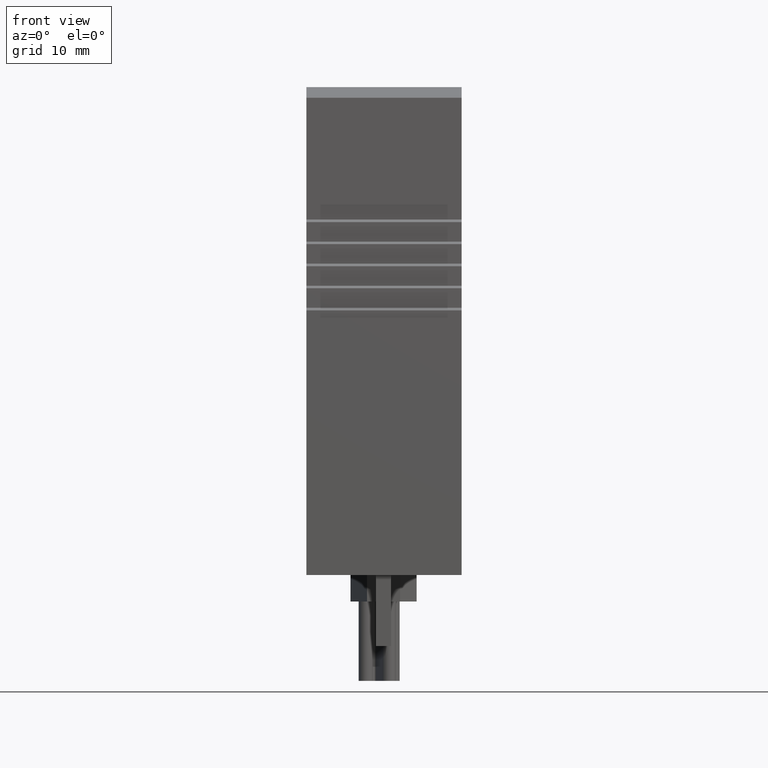
[diagram: clean part render]
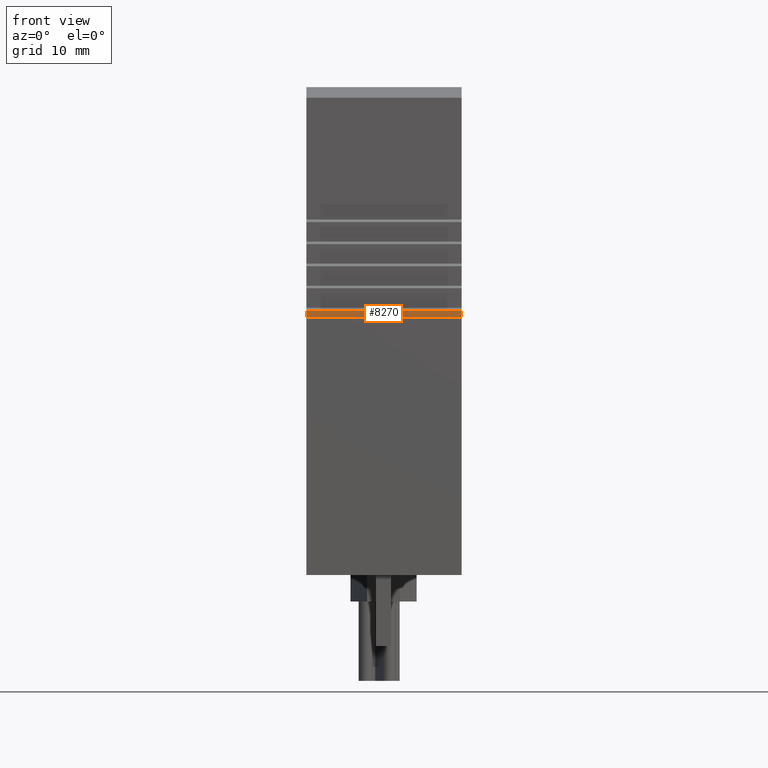
[diagram: same view with one face highlighted and labeled with its STEP entity id]
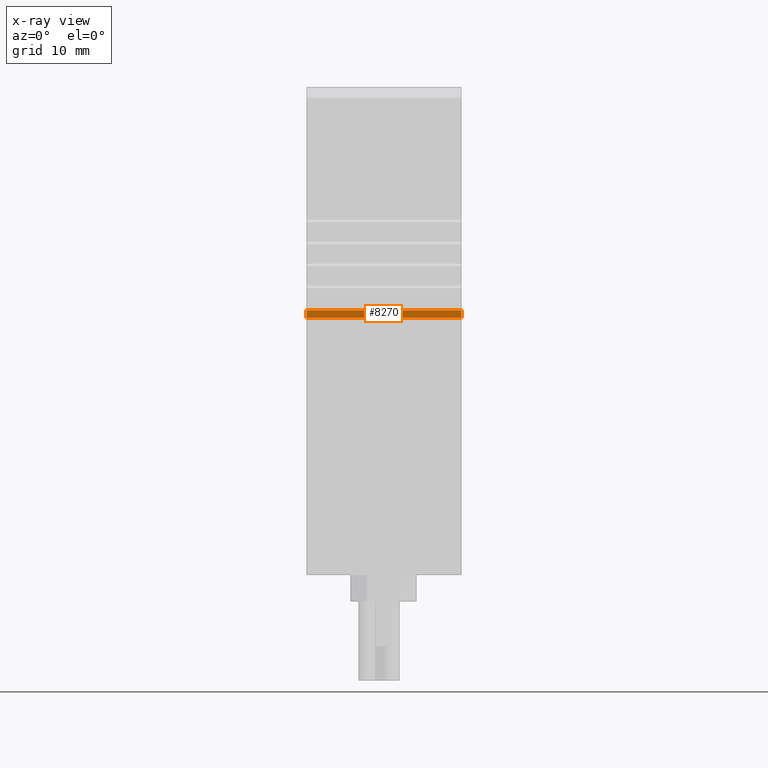
[diagram: x-ray of the same camera — body ghosted, the highlighted face saturated]
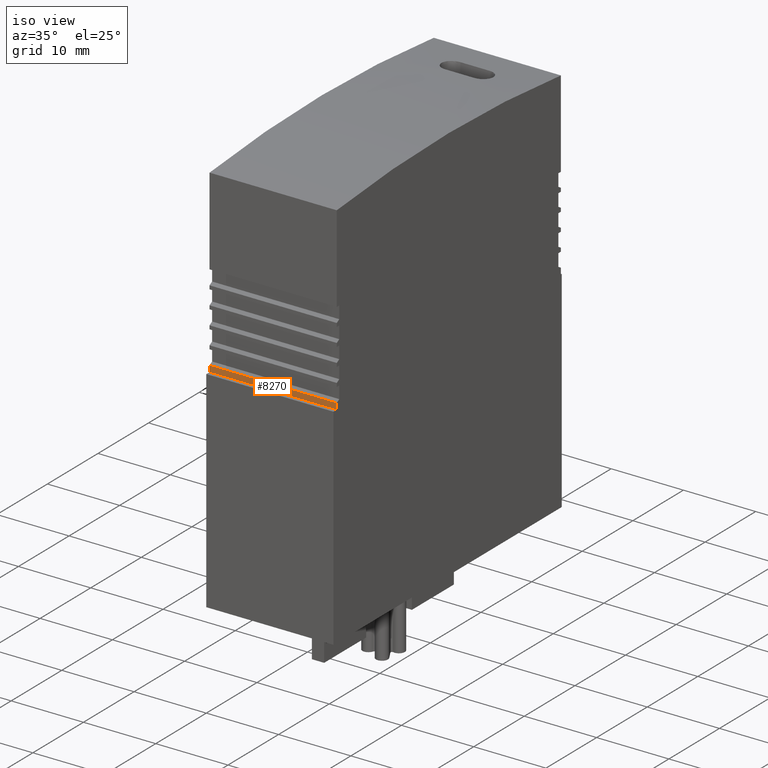
[diagram: same view with one face highlighted and labeled with its STEP entity id]
A machine part, front view. The second image highlights one B-rep face of the part: STEP entity #8270.
The next image is the same camera in x-ray: the body ghosted, the highlighted face saturated — about 0% of this face is hidden behind the body in this view.
A second angle (iso view) of the same face is appended — the face is thin or edge-on in the first view.
In plain terms, the highlighted planar face has unit normal (0, 1, -0).
Its self-contained STEP definition (entity closure, byte-faithful):
#3890=CARTESIAN_POINT('',(-21.6075274793369,53.8645893914119,
20.2498827057472));
#3900=VERTEX_POINT('',#3890);
#3930=CARTESIAN_POINT('',(-21.6075274793449,-20.149999999878,
20.2498827057463));
#3940=DIRECTION('',(-1.08637101161914E-13,-1.,-1.24373101147408E-14));
#3950=VECTOR('',#3940,1.);
#3960=LINE('',#3930,#3950);
#3970=CARTESIAN_POINT('',(-21.6075274793368,54.7149882265621,
20.2498827057472));
#3980=VERTEX_POINT('',#3970);
#3990=EDGE_CURVE('',#3980,#3900,#3960,.T.);
#7770=CARTESIAN_POINT('',(-21.6075274793369,53.8645893914121,
2.64988270574722));
#7780=VERTEX_POINT('',#7770);
#7810=CARTESIAN_POINT('',(-21.6075274793369,53.8645893914121,
7.14988270574725));
#7820=DIRECTION('',(-2.44929359829626E-16,-1.24373101147408E-14,1.));
#7830=VECTOR('',#7820,1.);
#7840=LINE('',#7810,#7830);
#7850=EDGE_CURVE('',#7780,#3900,#7840,.T.);
#8040=CARTESIAN_POINT('',(-21.6075274793368,54.7149882265626,
-15.2501172942527));
#8050=DIRECTION('',(1.,-1.08636374225961E-13,2.44929359828275E-16));
#8060=DIRECTION('',(1.08636374225961E-13,1.,1.24373101147408E-14));
#8070=AXIS2_PLACEMENT_3D('',#8040,#8050,#8060);
#8080=PLANE('',#8070);
#8090=ORIENTED_EDGE('',*,*,#7850,.T.);
#8100=CARTESIAN_POINT('',(-21.6075274793449,-20.1499999998778,
2.6498827057463));
#8110=DIRECTION('',(1.08637101161914E-13,1.,1.24373101147408E-14));
#8120=VECTOR('',#8110,1.);
#8130=LINE('',#8100,#8120);
#8140=CARTESIAN_POINT('',(-21.6075274793368,54.7149882265624,
2.64988270574723));
#8150=VERTEX_POINT('',#8140);
#8160=EDGE_CURVE('',#7780,#8150,#8130,.T.);
#8170=ORIENTED_EDGE('',*,*,#8160,.F.);
#8180=CARTESIAN_POINT('',(-21.6075274793368,54.7149882265623,
7.14988270574726));
#8190=DIRECTION('',(-2.44929359829346E-16,1.21544868667335E-14,-1.));
#8200=VECTOR('',#8190,1.);
#8210=LINE('',#8180,#8200);
#8220=EDGE_CURVE('',#3980,#8150,#8210,.T.);
#8230=ORIENTED_EDGE('',*,*,#8220,.T.);
#8240=ORIENTED_EDGE('',*,*,#3990,.F.);
#8250=EDGE_LOOP('',(#8240,#8230,#8170,#8090));
#8260=FACE_OUTER_BOUND('',#8250,.T.);
#8270=ADVANCED_FACE('',(#8260),#8080,.F.);